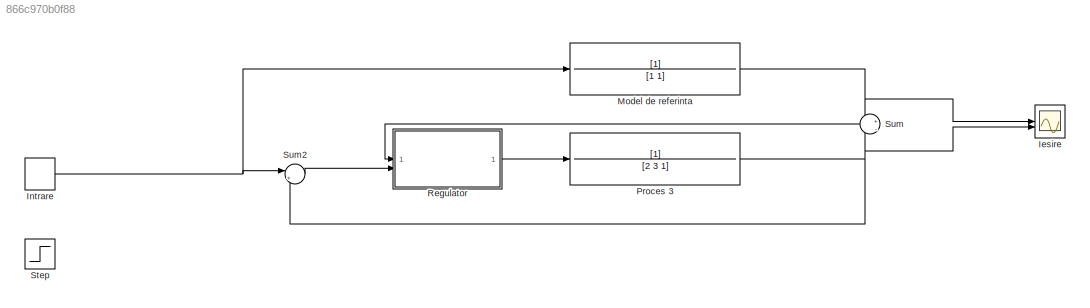
MODEL slx_866c970b0f88
KIND model
CONFIG AbsTol = auto
CONFIG EnableMultiTasking = off
CONFIG FixedStep = 0.01
CONFIG MaxStep = 0.1
CONFIG MinStep = auto
CONFIG RelTol = 1e-3
CONFIG SampleTimeConstraint = Unconstrained
CONFIG SolverName = ode1be
CONFIG StartTime = 0.0
CONFIG StopTime = 250
BLOCK [Scope] Iesire
  Floating = off
  NumInputPorts = 2
  ScopeSpecificationString = Simulink.scopes.TimeScopeBlockCfg('CurrentConfiguration', extmgr.ConfigurationSet(extmgr.Configuration('Core','General UI',true),extmgr.Configuration('Core','Source UI',true),extmgr.Configuration('Sources','WiredSimulink',true),extmgr.Configuration('Visuals','Time Domain',true,'SerializedDisplays',{struct('MinYLimReal','-0.13035','MaxYLimReal','1.16962','YLabelReal','','MinYLimMag','0.00000','MaxY...<+1550ch>
BLOCK [DiscretePulseGenerator] Intrare
  Period = 40
  PulseType = Time based
  PulseWidth = 50
BLOCK [TransferFcn] Model de referinta
BLOCK [TransferFcn] Proces 3
  Denominator = [2 3 1]
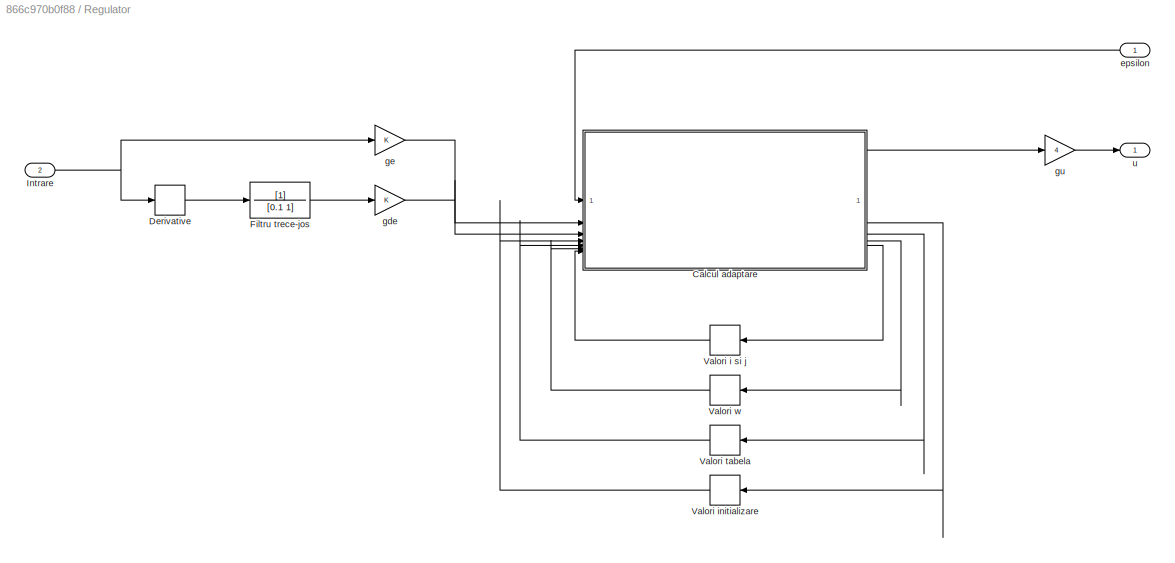
BLOCK [SubSystem] Regulator
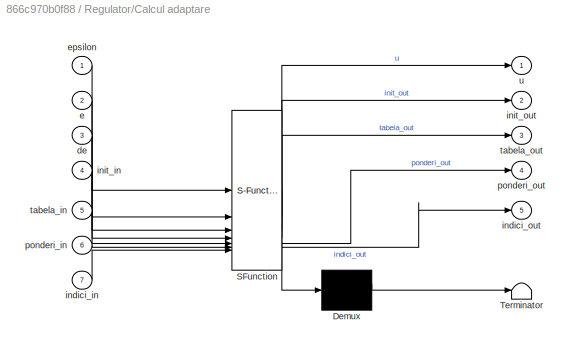
BLOCK [SubSystem] Regulator/Calcul adaptare
  ErrorFcn = Stateflow.Translate.translate
  PermitHierarchicalResolution = ExplicitOnly
  SFBlockType = MATLAB Function
  TreatAsAtomicUnit = on
BLOCK [Demux] Regulator/Calcul adaptare/ Demux 
  Outputs = 1
BLOCK [S-Function] Regulator/Calcul adaptare/ SFunction 
  EnableBusSupport = on
  FunctionName = sf_sfun
  Parameters = de_count,de_points,e_count,e_points,gamma
  PortCounts = [7 6]
  SFcnIsStateOwnerBlock = off
  SFunctionDeploymentMode = off
  Tag = Stateflow S-Function 2
BLOCK [Terminator] Regulator/Calcul adaptare/ Terminator 
BLOCK [Inport] Regulator/Calcul adaptare/de
  Port = 3
BLOCK [Inport] Regulator/Calcul adaptare/e
  Port = 2
BLOCK [Inport] Regulator/Calcul adaptare/epsilon
BLOCK [Inport] Regulator/Calcul adaptare/indici_in
  Port = 7
BLOCK [Outport] Regulator/Calcul adaptare/indici_out
  Port = 5
BLOCK [Inport] Regulator/Calcul adaptare/init_in
  Port = 4
BLOCK [Outport] Regulator/Calcul adaptare/init_out
  Port = 2
BLOCK [Inport] Regulator/Calcul adaptare/ponderi_in
  Port = 6
BLOCK [Outport] Regulator/Calcul adaptare/ponderi_out
  Port = 4
BLOCK [Inport] Regulator/Calcul adaptare/tabela_in
  Port = 5
BLOCK [Outport] Regulator/Calcul adaptare/tabela_out
  Port = 3
BLOCK [Outport] Regulator/Calcul adaptare/u
BLOCK [Derivative] Regulator/Derivative
BLOCK [TransferFcn] Regulator/Filtru trece-jos
  Denominator = [0.1 1]
BLOCK [Inport] Regulator/Intrare
  Port = 2
BLOCK [Memory] Regulator/Valori i si j
  InheritSampleTime = on
  NameLocation = top
BLOCK [Memory] Regulator/Valori initializare
  InheritSampleTime = on
  NameLocation = top
BLOCK [Memory] Regulator/Valori tabela
  InheritSampleTime = on
  NameLocation = top
BLOCK [Memory] Regulator/Valori w
  InheritSampleTime = on
  NameLocation = top
BLOCK [Inport] Regulator/epsilon
BLOCK [Gain] Regulator/gde
BLOCK [Gain] Regulator/ge
BLOCK [Gain] Regulator/gu
  Gain = 4
BLOCK [Outport] Regulator/u
BLOCK [Step] Step
  SampleTime = 0
BLOCK [Sum] Sum
  Inputs = +|-
  NameLocation = top
BLOCK [Sum] Sum2
  Inputs = |+-
NET Intrare:1 -> Model de referinta:1, Sum2:1
NET Model de referinta:1 -> Iesire:1, Sum:1
NET Proces 3:1 -> Iesire:2, Sum2:2, Sum:2
LINE Regulator/Calcul adaptare:1 -> Regulator/gu:1
LINE Regulator/Calcul adaptare:2 -> Regulator/Valori initializare:1
LINE Regulator/Calcul adaptare:3 -> Regulator/Valori tabela:1
LINE Regulator/Calcul adaptare:4 -> Regulator/Valori w:1
LINE Regulator/Calcul adaptare:5 -> Regulator/Valori i si j:1
LINE Regulator/Derivative:1 -> Regulator/Filtru trece-jos:1
LINE Regulator/Filtru trece-jos:1 -> Regulator/gde:1
NET Regulator/Intrare:1 -> Regulator/Derivative:1, Regulator/ge:1
LINE Regulator/Valori i si j:1 -> Regulator/Calcul adaptare:7
LINE Regulator/Valori initializare:1 -> Regulator/Calcul adaptare:4
LINE Regulator/Valori tabela:1 -> Regulator/Calcul adaptare:5
LINE Regulator/Valori w:1 -> Regulator/Calcul adaptare:6
LINE Regulator/epsilon:1 -> Regulator/Calcul adaptare:1
LINE Regulator/gde:1 -> Regulator/Calcul adaptare:3
LINE Regulator/ge:1 -> Regulator/Calcul adaptare:2
LINE Regulator/gu:1 -> Regulator/u:1
LINE Regulator:1 -> Proces 3:1
LINE Sum2:1 -> Regulator:2
LINE Sum:1 -> Regulator:1
note: NET lines group one-source signal fan-out (src -> all destinations, sorted); 1:1 wires keep LINE
CHART Regulator/Calcul adaptare states=1 transitions=1
  STATE_LABEL 'eML_blk_kernel()'
  STATE_LABEL 'SCRIPT:\nfunction [u, init_out, tabela_out, ponderi_out, indici_out] = TabelaDeDecizieMamdani(epsilon, e, de, init_in, tabela_in, ponderi_in, indici_in, e_count, de_count, e_points, de_points, gamma)\n    clc\n\n    % Utilizarea parametrilor Simulink \n    gamma = gamma; % Rata de adaptare\n\n    e_count = e_count;  \n    de_count = de_count;  \n    e_points = e_points;  \n    de_points = de_points; \n\n    %...<+3294ch>'
CHART  states=0 transitions=0
